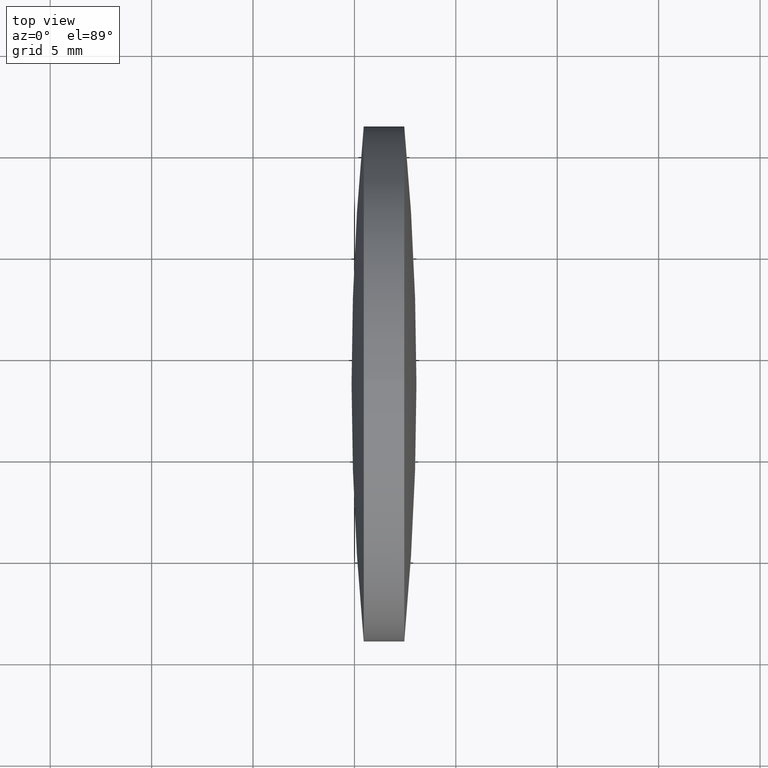
[diagram: clean part render]
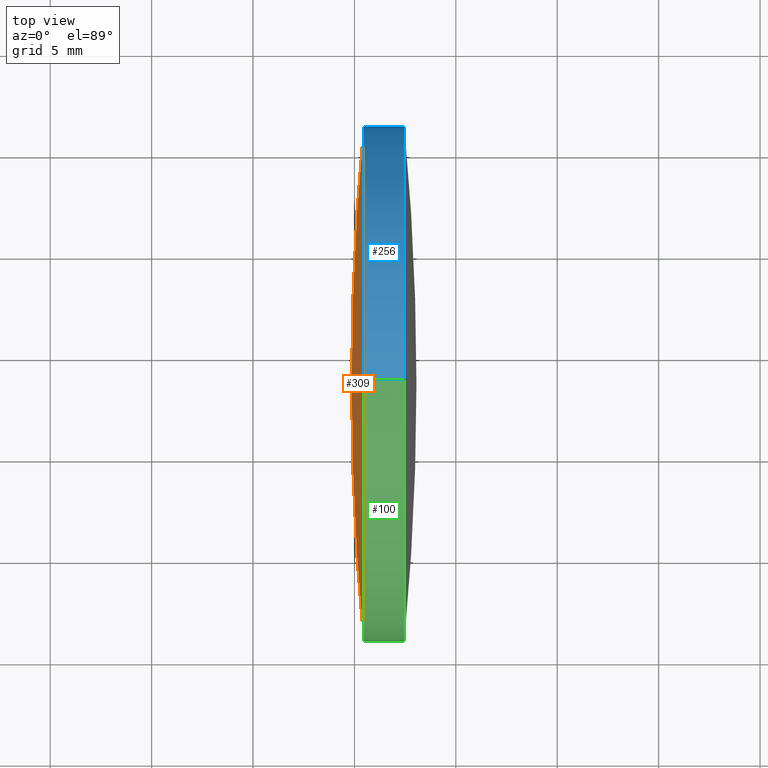
[diagram: same view with three faces highlighted in distinct colors, each labeled with its STEP entity id]
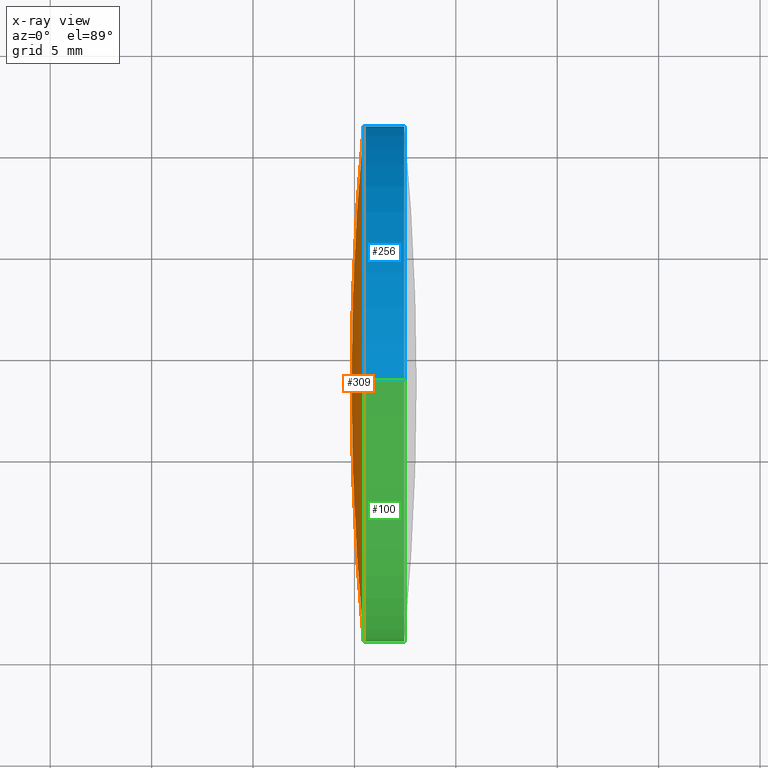
[diagram: x-ray of the same camera — body ghosted, the three highlighted faces saturated]
A machine part, top view with three faces highlighted in distinct colors.
The next image is the same camera in x-ray (body ghosted, the three faces saturated) — at least one of them is partly hidden behind the body in this view.
Their STEP definitions:

[orange] entity #309 — the highlighted spherical surface has radius 134.671 mm.
#8 = CARTESIAN_POINT ( 'NONE',  ( 85.45852234609111500, 61.31611302318469800, 0.0000000000000000000 ) ) ;
#31 = EDGE_CURVE ( 'NONE', #296, #215, #308, .T. ) ;
#60 = CARTESIAN_POINT ( 'NONE',  ( 85.45852234609111500, 48.61611302318478100, 12.69999999999999600 ) ) ;
#81 = EDGE_CURVE ( 'NONE', #234, #156, #266, .T. ) ;
#91 = DIRECTION ( 'NONE',  ( 0.0000000000000000000, 1.224646799147353200E-016, -1.000000000000000000 ) ) ;
#106 = ORIENTED_EDGE ( 'NONE', *, *, #341, .T. ) ;
#110 = AXIS2_PLACEMENT_3D ( 'NONE', #141, #91, #188 ) ;
#113 = CARTESIAN_POINT ( 'NONE',  ( 219.5296607706903600, 48.61611302318469500, 0.0000000000000000000 ) ) ;
#117 = SPHERICAL_SURFACE ( 'NONE', #182, 134.6713041388849500 ) ;
#141 = CARTESIAN_POINT ( 'NONE',  ( 219.5296607706903600, 48.61611302318469500, 0.0000000000000000000 ) ) ;
#144 = DIRECTION ( 'NONE',  ( 1.000000000000000000, 0.0000000000000000000, 0.0000000000000000000 ) ) ;
#154 = DIRECTION ( 'NONE',  ( 0.0000000000000000000, 0.0000000000000000000, 1.000000000000000000 ) ) ;
#156 = VERTEX_POINT ( 'NONE', #227 ) ;
#163 = EDGE_LOOP ( 'NONE', ( #328, #244, #106, #275 ) ) ;
#165 = CIRCLE ( 'NONE', #110, 134.6713041388849500 ) ;
#174 = EDGE_CURVE ( 'NONE', #296, #156, #165, .T. ) ;
#182 = AXIS2_PLACEMENT_3D ( 'NONE', #113, #304, #337 ) ;
#188 = DIRECTION ( 'NONE',  ( 0.0000000000000000000, 1.000000000000000000, 1.224646799147353500E-016 ) ) ;
#196 = CARTESIAN_POINT ( 'NONE',  ( 219.5296607706903600, 48.61611302318469500, 0.0000000000000000000 ) ) ;
#198 = CARTESIAN_POINT ( 'NONE',  ( 85.45852234609111500, 48.61611302318478100, 0.0000000000000000000 ) ) ;
#201 = DIRECTION ( 'NONE',  ( -1.000000000000000000, -0.0000000000000000000, -0.0000000000000000000 ) ) ;
#208 = AXIS2_PLACEMENT_3D ( 'NONE', #322, #271, #272 ) ;
#215 = VERTEX_POINT ( 'NONE', #60 ) ;
#227 = CARTESIAN_POINT ( 'NONE',  ( 84.85835663180540700, 48.61611302318470300, 0.0000000000000000000 ) ) ;
#234 = VERTEX_POINT ( 'NONE', #8 ) ;
#244 = ORIENTED_EDGE ( 'NONE', *, *, #31, .T. ) ;
#255 = AXIS2_PLACEMENT_3D ( 'NONE', #198, #201, #154 ) ;
#266 = CIRCLE ( 'NONE', #319, 134.6713041388849500 ) ;
#271 = DIRECTION ( 'NONE',  ( -1.000000000000000000, -0.0000000000000000000, -0.0000000000000000000 ) ) ;
#272 = DIRECTION ( 'NONE',  ( 0.0000000000000000000, 0.0000000000000000000, 1.000000000000000000 ) ) ;
#275 = ORIENTED_EDGE ( 'NONE', *, *, #81, .T. ) ;
#296 = VERTEX_POINT ( 'NONE', #303 ) ;
#303 = CARTESIAN_POINT ( 'NONE',  ( 85.45852234609111500, 35.91611302318477800, -1.555301434917127800E-015 ) ) ;
#304 = DIRECTION ( 'NONE',  ( -0.0000000000000000000, 0.0000000000000000000, -1.000000000000000000 ) ) ;
#308 = CIRCLE ( 'NONE', #208, 12.69999999999999600 ) ;
#309 = ADVANCED_FACE ( 'NONE', ( #318 ), #117, .T. ) ;
#318 = FACE_OUTER_BOUND ( 'NONE', #163, .T. ) ;
#319 = AXIS2_PLACEMENT_3D ( 'NONE', #196, #325, #144 ) ;
#320 = CIRCLE ( 'NONE', #255, 12.69999999999999600 ) ;
#322 = CARTESIAN_POINT ( 'NONE',  ( 85.45852234609111500, 48.61611302318478100, 0.0000000000000000000 ) ) ;
#325 = DIRECTION ( 'NONE',  ( -0.0000000000000000000, 0.0000000000000000000, 1.000000000000000000 ) ) ;
#328 = ORIENTED_EDGE ( 'NONE', *, *, #174, .F. ) ;
#337 = DIRECTION ( 'NONE',  ( 0.0000000000000000000, 1.000000000000000000, 0.0000000000000000000 ) ) ;
#341 = EDGE_CURVE ( 'NONE', #215, #234, #320, .T. ) ;

[blue] entity #256 — the highlighted cylindrical surface (partial cylindrical patch) has radius 12.7 mm, axis along (-1, -0, -0).
#2 = EDGE_CURVE ( 'NONE', #343, #215, #87, .T. ) ;
#7 = DIRECTION ( 'NONE',  ( 0.0000000000000000000, 0.0000000000000000000, 1.000000000000000000 ) ) ;
#8 = CARTESIAN_POINT ( 'NONE',  ( 85.45852234609111500, 61.31611302318469800, 0.0000000000000000000 ) ) ;
#10 = EDGE_CURVE ( 'NONE', #160, #180, #226, .T. ) ;
#22 = ORIENTED_EDGE ( 'NONE', *, *, #187, .F. ) ;
#23 = DIRECTION ( 'NONE',  ( -1.000000000000000000, -0.0000000000000000000, -0.0000000000000000000 ) ) ;
#28 = CARTESIAN_POINT ( 'NONE',  ( 85.45852234609111500, 48.61611302318478100, 0.0000000000000000000 ) ) ;
#32 = VERTEX_POINT ( 'NONE', #131 ) ;
#33 = CARTESIAN_POINT ( 'NONE',  ( 87.45786520323396500, 48.61611302318478100, -12.69999999999999600 ) ) ;
#34 = CARTESIAN_POINT ( 'NONE',  ( 79.30540135083715800, 48.61611302318478100, 0.0000000000000000000 ) ) ;
#42 = CARTESIAN_POINT ( 'NONE',  ( 87.45786520323396500, 48.61611302318478100, 12.69999999999999600 ) ) ;
#45 = EDGE_CURVE ( 'NONE', #343, #160, #97, .T. ) ;
#51 = DIRECTION ( 'NONE',  ( -1.000000000000000000, -0.0000000000000000000, -0.0000000000000000000 ) ) ;
#55 = ORIENTED_EDGE ( 'NONE', *, *, #181, .T. ) ;
#59 = DIRECTION ( 'NONE',  ( -1.000000000000000000, -0.0000000000000000000, -0.0000000000000000000 ) ) ;
#60 = CARTESIAN_POINT ( 'NONE',  ( 85.45852234609111500, 48.61611302318478100, 12.69999999999999600 ) ) ;
#64 = CARTESIAN_POINT ( 'NONE',  ( 87.45786520323397900, 61.31611302318493300, 1.555301434917144000E-015 ) ) ;
#78 = DIRECTION ( 'NONE',  ( 0.0000000000000000000, 0.0000000000000000000, 1.000000000000000000 ) ) ;
#80 = DIRECTION ( 'NONE',  ( -1.000000000000000000, -0.0000000000000000000, -0.0000000000000000000 ) ) ;
#87 = LINE ( 'NONE', #217, #301 ) ;
#90 = ORIENTED_EDGE ( 'NONE', *, *, #10, .T. ) ;
#97 = CIRCLE ( 'NONE', #233, 12.69999999999999600 ) ;
#124 = ORIENTED_EDGE ( 'NONE', *, *, #45, .T. ) ;
#127 = ORIENTED_EDGE ( 'NONE', *, *, #341, .F. ) ;
#129 = AXIS2_PLACEMENT_3D ( 'NONE', #28, #228, #7 ) ;
#131 = CARTESIAN_POINT ( 'NONE',  ( 85.45852234609111500, 48.61611302318478100, -12.69999999999999600 ) ) ;
#134 = AXIS2_PLACEMENT_3D ( 'NONE', #300, #80, #78 ) ;
#154 = DIRECTION ( 'NONE',  ( 0.0000000000000000000, 0.0000000000000000000, 1.000000000000000000 ) ) ;
#160 = VERTEX_POINT ( 'NONE', #64 ) ;
#162 = CYLINDRICAL_SURFACE ( 'NONE', #248, 12.69999999999999600 ) ;
#168 = CARTESIAN_POINT ( 'NONE',  ( 79.30540135083715800, 48.61611302318478100, -12.69999999999999600 ) ) ;
#180 = VERTEX_POINT ( 'NONE', #33 ) ;
#181 = EDGE_CURVE ( 'NONE', #180, #32, #295, .T. ) ;
#186 = FACE_OUTER_BOUND ( 'NONE', #287, .T. ) ;
#187 = EDGE_CURVE ( 'NONE', #234, #32, #285, .T. ) ;
#198 = CARTESIAN_POINT ( 'NONE',  ( 85.45852234609111500, 48.61611302318478100, 0.0000000000000000000 ) ) ;
#201 = DIRECTION ( 'NONE',  ( -1.000000000000000000, -0.0000000000000000000, -0.0000000000000000000 ) ) ;
#215 = VERTEX_POINT ( 'NONE', #60 ) ;
#216 = DIRECTION ( 'NONE',  ( 0.0000000000000000000, 0.0000000000000000000, 1.000000000000000000 ) ) ;
#217 = CARTESIAN_POINT ( 'NONE',  ( 79.30540135083715800, 48.61611302318478100, 12.69999999999999600 ) ) ;
#226 = CIRCLE ( 'NONE', #134, 12.69999999999999600 ) ;
#228 = DIRECTION ( 'NONE',  ( -1.000000000000000000, -0.0000000000000000000, -0.0000000000000000000 ) ) ;
#233 = AXIS2_PLACEMENT_3D ( 'NONE', #345, #23, #216 ) ;
#234 = VERTEX_POINT ( 'NONE', #8 ) ;
#248 = AXIS2_PLACEMENT_3D ( 'NONE', #34, #327, #279 ) ;
#255 = AXIS2_PLACEMENT_3D ( 'NONE', #198, #201, #154 ) ;
#256 = ADVANCED_FACE ( 'NONE', ( #186 ), #162, .T. ) ;
#260 = ORIENTED_EDGE ( 'NONE', *, *, #2, .F. ) ;
#279 = DIRECTION ( 'NONE',  ( 0.0000000000000000000, 0.0000000000000000000, 1.000000000000000000 ) ) ;
#285 = CIRCLE ( 'NONE', #129, 12.69999999999999600 ) ;
#287 = EDGE_LOOP ( 'NONE', ( #90, #55, #22, #127, #260, #124 ) ) ;
#295 = LINE ( 'NONE', #168, #298 ) ;
#298 = VECTOR ( 'NONE', #59, 1000.000000000000000 ) ;
#300 = CARTESIAN_POINT ( 'NONE',  ( 87.45786520323396500, 48.61611302318478100, 0.0000000000000000000 ) ) ;
#301 = VECTOR ( 'NONE', #51, 1000.000000000000000 ) ;
#320 = CIRCLE ( 'NONE', #255, 12.69999999999999600 ) ;
#327 = DIRECTION ( 'NONE',  ( -1.000000000000000000, -0.0000000000000000000, -0.0000000000000000000 ) ) ;
#341 = EDGE_CURVE ( 'NONE', #215, #234, #320, .T. ) ;
#343 = VERTEX_POINT ( 'NONE', #42 ) ;
#345 = CARTESIAN_POINT ( 'NONE',  ( 87.45786520323396500, 48.61611302318478100, 0.0000000000000000000 ) ) ;

[green] entity #100 — the highlighted cylindrical surface (partial cylindrical patch) has radius 12.7 mm, axis along (-1, -0, -0).
#2 = EDGE_CURVE ( 'NONE', #343, #215, #87, .T. ) ;
#3 = ORIENTED_EDGE ( 'NONE', *, *, #2, .T. ) ;
#4 = DIRECTION ( 'NONE',  ( -1.000000000000000000, -0.0000000000000000000, -0.0000000000000000000 ) ) ;
#26 = CARTESIAN_POINT ( 'NONE',  ( 87.45786520323396500, 48.61611302318478100, 0.0000000000000000000 ) ) ;
#31 = EDGE_CURVE ( 'NONE', #296, #215, #308, .T. ) ;
#32 = VERTEX_POINT ( 'NONE', #131 ) ;
#33 = CARTESIAN_POINT ( 'NONE',  ( 87.45786520323396500, 48.61611302318478100, -12.69999999999999600 ) ) ;
#42 = CARTESIAN_POINT ( 'NONE',  ( 87.45786520323396500, 48.61611302318478100, 12.69999999999999600 ) ) ;
#48 = FACE_OUTER_BOUND ( 'NONE', #206, .T. ) ;
#50 = EDGE_CURVE ( 'NONE', #315, #343, #221, .T. ) ;
#51 = DIRECTION ( 'NONE',  ( -1.000000000000000000, -0.0000000000000000000, -0.0000000000000000000 ) ) ;
#53 = AXIS2_PLACEMENT_3D ( 'NONE', #166, #224, #329 ) ;
#59 = DIRECTION ( 'NONE',  ( -1.000000000000000000, -0.0000000000000000000, -0.0000000000000000000 ) ) ;
#60 = CARTESIAN_POINT ( 'NONE',  ( 85.45852234609111500, 48.61611302318478100, 12.69999999999999600 ) ) ;
#68 = ORIENTED_EDGE ( 'NONE', *, *, #181, .F. ) ;
#82 = DIRECTION ( 'NONE',  ( -1.000000000000000000, -0.0000000000000000000, -0.0000000000000000000 ) ) ;
#86 = CARTESIAN_POINT ( 'NONE',  ( 85.45852234609111500, 48.61611302318478100, 0.0000000000000000000 ) ) ;
#87 = LINE ( 'NONE', #217, #301 ) ;
#88 = CARTESIAN_POINT ( 'NONE',  ( 87.45786520323396500, 48.61611302318478100, 0.0000000000000000000 ) ) ;
#100 = ADVANCED_FACE ( 'NONE', ( #48 ), #108, .T. ) ;
#108 = CYLINDRICAL_SURFACE ( 'NONE', #53, 12.69999999999999600 ) ;
#128 = CIRCLE ( 'NONE', #157, 12.69999999999999600 ) ;
#131 = CARTESIAN_POINT ( 'NONE',  ( 85.45852234609111500, 48.61611302318478100, -12.69999999999999600 ) ) ;
#157 = AXIS2_PLACEMENT_3D ( 'NONE', #86, #276, #251 ) ;
#161 = AXIS2_PLACEMENT_3D ( 'NONE', #88, #4, #193 ) ;
#166 = CARTESIAN_POINT ( 'NONE',  ( 79.30540135083715800, 48.61611302318478100, 0.0000000000000000000 ) ) ;
#168 = CARTESIAN_POINT ( 'NONE',  ( 79.30540135083715800, 48.61611302318478100, -12.69999999999999600 ) ) ;
#180 = VERTEX_POINT ( 'NONE', #33 ) ;
#181 = EDGE_CURVE ( 'NONE', #180, #32, #295, .T. ) ;
#191 = ORIENTED_EDGE ( 'NONE', *, *, #50, .T. ) ;
#193 = DIRECTION ( 'NONE',  ( 0.0000000000000000000, 0.0000000000000000000, 1.000000000000000000 ) ) ;
#206 = EDGE_LOOP ( 'NONE', ( #68, #222, #191, #3, #239, #262 ) ) ;
#208 = AXIS2_PLACEMENT_3D ( 'NONE', #322, #271, #272 ) ;
#213 = EDGE_CURVE ( 'NONE', #32, #296, #128, .T. ) ;
#215 = VERTEX_POINT ( 'NONE', #60 ) ;
#217 = CARTESIAN_POINT ( 'NONE',  ( 79.30540135083715800, 48.61611302318478100, 12.69999999999999600 ) ) ;
#221 = CIRCLE ( 'NONE', #247, 12.69999999999999600 ) ;
#222 = ORIENTED_EDGE ( 'NONE', *, *, #283, .T. ) ;
#224 = DIRECTION ( 'NONE',  ( -1.000000000000000000, -0.0000000000000000000, -0.0000000000000000000 ) ) ;
#239 = ORIENTED_EDGE ( 'NONE', *, *, #31, .F. ) ;
#247 = AXIS2_PLACEMENT_3D ( 'NONE', #26, #82, #273 ) ;
#251 = DIRECTION ( 'NONE',  ( 0.0000000000000000000, 0.0000000000000000000, 1.000000000000000000 ) ) ;
#262 = ORIENTED_EDGE ( 'NONE', *, *, #213, .F. ) ;
#271 = DIRECTION ( 'NONE',  ( -1.000000000000000000, -0.0000000000000000000, -0.0000000000000000000 ) ) ;
#272 = DIRECTION ( 'NONE',  ( 0.0000000000000000000, 0.0000000000000000000, 1.000000000000000000 ) ) ;
#273 = DIRECTION ( 'NONE',  ( 0.0000000000000000000, 0.0000000000000000000, 1.000000000000000000 ) ) ;
#276 = DIRECTION ( 'NONE',  ( -1.000000000000000000, -0.0000000000000000000, -0.0000000000000000000 ) ) ;
#281 = CARTESIAN_POINT ( 'NONE',  ( 87.45786520323397900, 35.91611302318473500, 0.0000000000000000000 ) ) ;
#283 = EDGE_CURVE ( 'NONE', #180, #315, #305, .T. ) ;
#295 = LINE ( 'NONE', #168, #298 ) ;
#296 = VERTEX_POINT ( 'NONE', #303 ) ;
#298 = VECTOR ( 'NONE', #59, 1000.000000000000000 ) ;
#301 = VECTOR ( 'NONE', #51, 1000.000000000000000 ) ;
#303 = CARTESIAN_POINT ( 'NONE',  ( 85.45852234609111500, 35.91611302318477800, -1.555301434917127800E-015 ) ) ;
#305 = CIRCLE ( 'NONE', #161, 12.69999999999999600 ) ;
#308 = CIRCLE ( 'NONE', #208, 12.69999999999999600 ) ;
#315 = VERTEX_POINT ( 'NONE', #281 ) ;
#322 = CARTESIAN_POINT ( 'NONE',  ( 85.45852234609111500, 48.61611302318478100, 0.0000000000000000000 ) ) ;
#329 = DIRECTION ( 'NONE',  ( 0.0000000000000000000, 0.0000000000000000000, 1.000000000000000000 ) ) ;
#343 = VERTEX_POINT ( 'NONE', #42 ) ;